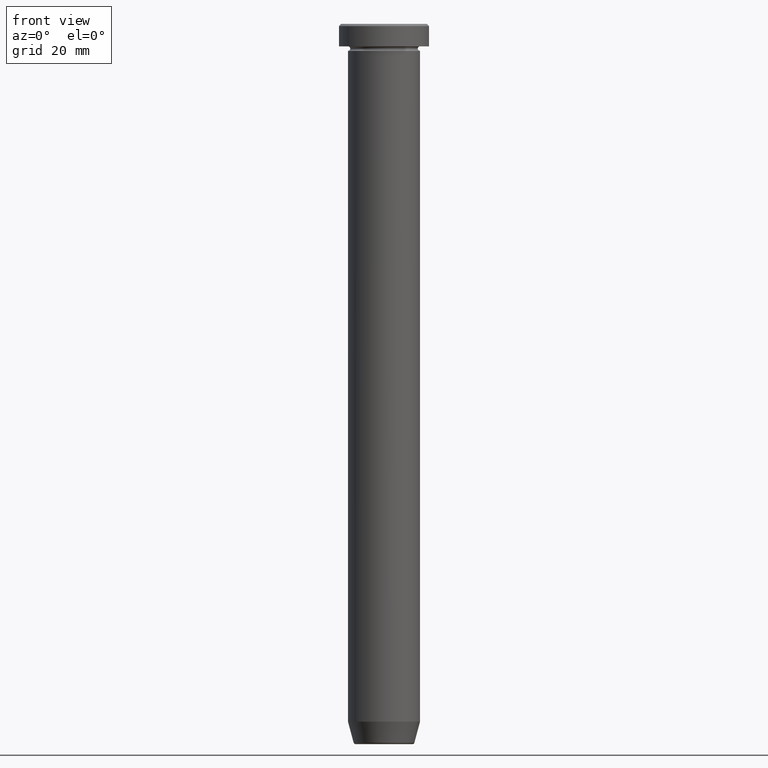
[diagram: clean part render]
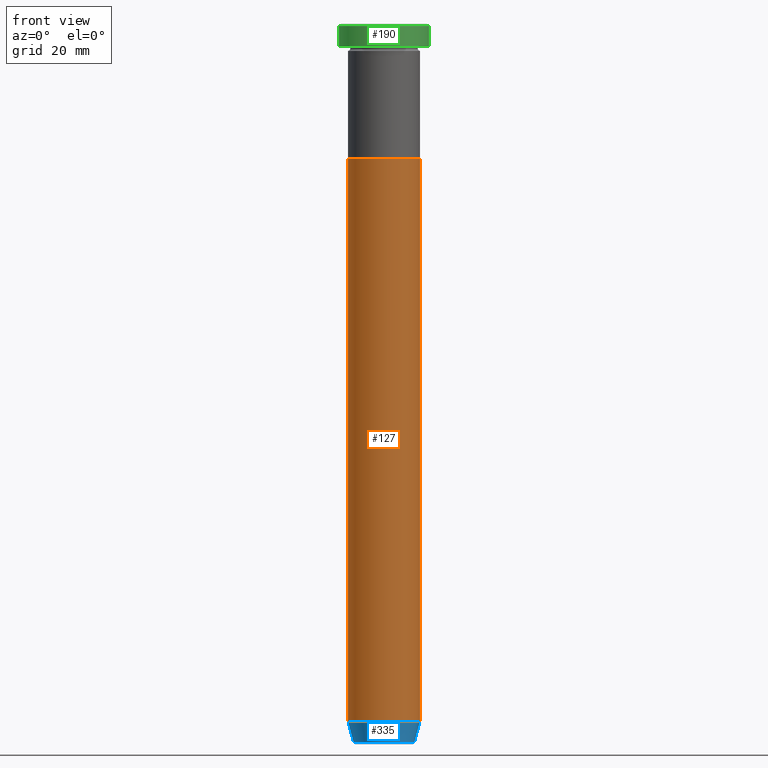
[diagram: same view with three faces highlighted in distinct colors, each labeled with its STEP entity id]
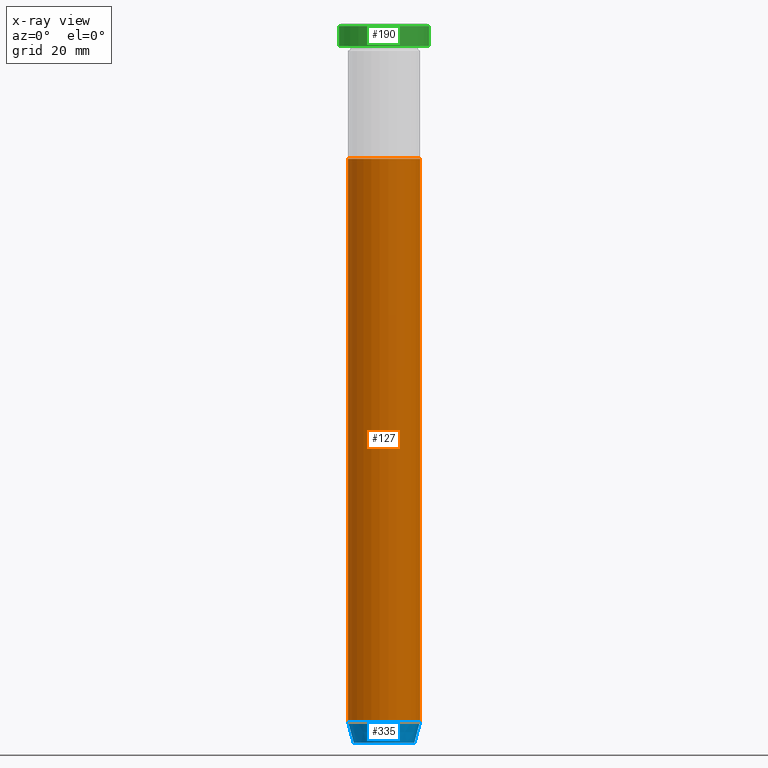
[diagram: x-ray of the same camera — body ghosted, the three highlighted faces saturated]
A machine part, front view with three faces highlighted in distinct colors.
The next image is the same camera in x-ray (body ghosted, the three faces saturated) — at least one of them is partly hidden behind the body in this view.
Their STEP definitions:

[orange] entity #127 — the highlighted cylindrical surface (edge-blend (fillet) strip) has radius 8 mm, axis along (-0, -0, 1).
#27 = CARTESIAN_POINT ( 'NONE',  ( 8.000000000000000000, 0.000000000000000000, 0.000000000000000000 ) ) ;
#77 = DIRECTION ( 'NONE',  ( 1.000000000000000000, 0.000000000000000000, 0.000000000000000000 ) ) ;
#83 = VECTOR ( 'NONE', #563, 1000.000000000000000 ) ;
#102 = CARTESIAN_POINT ( 'NONE',  ( 8.000000000000000000, 0.000000000000000000, -155.0000000000000000 ) ) ;
#116 = VERTEX_POINT ( 'NONE', #392 ) ;
#127 = ADVANCED_FACE ( 'NONE', ( #263 ), #453, .T. ) ;
#140 = DIRECTION ( 'NONE',  ( -0.000000000000000000, -0.000000000000000000, 1.000000000000000000 ) ) ;
#159 = DIRECTION ( 'NONE',  ( -0.000000000000000000, -0.000000000000000000, 1.000000000000000000 ) ) ;
#198 = EDGE_CURVE ( 'NONE', #341, #458, #204, .T. ) ;
#204 = LINE ( 'NONE', #533, #83 ) ;
#211 = ORIENTED_EDGE ( 'NONE', *, *, #475, .T. ) ;
#218 = CARTESIAN_POINT ( 'NONE',  ( 0.000000000000000000, 0.000000000000000000, 0.000000000000000000 ) ) ;
#226 = DIRECTION ( 'NONE',  ( -0.000000000000000000, -0.000000000000000000, 1.000000000000000000 ) ) ;
#238 = AXIS2_PLACEMENT_3D ( 'NONE', #218, #316, #77 ) ;
#258 = EDGE_CURVE ( 'NONE', #458, #116, #568, .T. ) ;
#263 = FACE_OUTER_BOUND ( 'NONE', #334, .T. ) ;
#306 = ORIENTED_EDGE ( 'NONE', *, *, #343, .T. ) ;
#307 = DIRECTION ( 'NONE',  ( 1.000000000000000000, 0.000000000000000000, 0.000000000000000000 ) ) ;
#316 = DIRECTION ( 'NONE',  ( -0.000000000000000000, -0.000000000000000000, 1.000000000000000000 ) ) ;
#317 = VERTEX_POINT ( 'NONE', #102 ) ;
#334 = EDGE_LOOP ( 'NONE', ( #355, #211, #306, #513 ) ) ;
#338 = CARTESIAN_POINT ( 'NONE',  ( 0.000000000000000000, 0.000000000000000000, -30.00000000000000000 ) ) ;
#341 = VERTEX_POINT ( 'NONE', #546 ) ;
#343 = EDGE_CURVE ( 'NONE', #317, #116, #549, .T. ) ;
#355 = ORIENTED_EDGE ( 'NONE', *, *, #198, .F. ) ;
#366 = CARTESIAN_POINT ( 'NONE',  ( 0.000000000000000000, 0.000000000000000000, -155.0000000000000000 ) ) ;
#372 = DIRECTION ( 'NONE',  ( 1.000000000000000000, 0.000000000000000000, 0.000000000000000000 ) ) ;
#392 = CARTESIAN_POINT ( 'NONE',  ( 8.000000000000000000, 0.000000000000000000, -30.00000000000000000 ) ) ;
#453 = CYLINDRICAL_SURFACE ( 'NONE', #238, 8.000000000000000000 ) ;
#458 = VERTEX_POINT ( 'NONE', #479 ) ;
#475 = EDGE_CURVE ( 'NONE', #341, #317, #500, .T. ) ;
#479 = CARTESIAN_POINT ( 'NONE',  ( -8.000000000000000000, 9.797174393178825657E-16, -30.00000000000000000 ) ) ;
#500 = CIRCLE ( 'NONE', #585, 8.000000000000000000 ) ;
#513 = ORIENTED_EDGE ( 'NONE', *, *, #258, .F. ) ;
#533 = CARTESIAN_POINT ( 'NONE',  ( -8.000000000000000000, 9.797174393178825657E-16, 0.000000000000000000 ) ) ;
#546 = CARTESIAN_POINT ( 'NONE',  ( -8.000000000000000000, 9.797174393178825657E-16, -155.0000000000000000 ) ) ;
#549 = LINE ( 'NONE', #27, #584 ) ;
#563 = DIRECTION ( 'NONE',  ( -0.000000000000000000, -0.000000000000000000, 1.000000000000000000 ) ) ;
#568 = CIRCLE ( 'NONE', #577, 8.000000000000000000 ) ;
#577 = AXIS2_PLACEMENT_3D ( 'NONE', #338, #159, #307 ) ;
#584 = VECTOR ( 'NONE', #226, 1000.000000000000000 ) ;
#585 = AXIS2_PLACEMENT_3D ( 'NONE', #366, #140, #372 ) ;

[blue] entity #335 — the highlighted conical surface has half-angle 15 deg.
#13 = DIRECTION ( 'NONE',  ( -1.000000000000000000, 0.000000000000000000, 0.000000000000000000 ) ) ;
#45 = DIRECTION ( 'NONE',  ( -0.2588190451025211836, 3.169619151431770488E-17, 0.9659258262890680902 ) ) ;
#63 = DIRECTION ( 'NONE',  ( -0.000000000000000000, -0.000000000000000000, 1.000000000000000000 ) ) ;
#65 = LINE ( 'NONE', #399, #369 ) ;
#67 = CONICAL_SURFACE ( 'NONE', #406, 6.660254037844382857, 0.2617993877991499074 ) ;
#102 = CARTESIAN_POINT ( 'NONE',  ( 8.000000000000000000, 0.000000000000000000, -155.0000000000000000 ) ) ;
#140 = DIRECTION ( 'NONE',  ( -0.000000000000000000, -0.000000000000000000, 1.000000000000000000 ) ) ;
#155 = ORIENTED_EDGE ( 'NONE', *, *, #536, .F. ) ;
#184 = CIRCLE ( 'NONE', #530, 6.759553456999436882 ) ;
#231 = EDGE_LOOP ( 'NONE', ( #155, #461, #246, #290 ) ) ;
#246 = ORIENTED_EDGE ( 'NONE', *, *, #415, .T. ) ;
#281 = CARTESIAN_POINT ( 'NONE',  ( 6.759553456999436882, 0.000000000000000000, -159.6294095225512422 ) ) ;
#290 = ORIENTED_EDGE ( 'NONE', *, *, #475, .F. ) ;
#304 = CARTESIAN_POINT ( 'NONE',  ( 0.000000000000000000, 0.000000000000000000, -159.6294095225512422 ) ) ;
#317 = VERTEX_POINT ( 'NONE', #102 ) ;
#335 = ADVANCED_FACE ( 'NONE', ( #386 ), #67, .T. ) ;
#341 = VERTEX_POINT ( 'NONE', #546 ) ;
#366 = CARTESIAN_POINT ( 'NONE',  ( 0.000000000000000000, 0.000000000000000000, -155.0000000000000000 ) ) ;
#369 = VECTOR ( 'NONE', #576, 1000.000000000000114 ) ;
#372 = DIRECTION ( 'NONE',  ( 1.000000000000000000, 0.000000000000000000, 0.000000000000000000 ) ) ;
#373 = VERTEX_POINT ( 'NONE', #424 ) ;
#385 = VERTEX_POINT ( 'NONE', #281 ) ;
#386 = FACE_OUTER_BOUND ( 'NONE', #231, .T. ) ;
#399 = CARTESIAN_POINT ( 'NONE',  ( 6.660254037844382857, 0.000000000000000000, -160.0000000000000000 ) ) ;
#406 = AXIS2_PLACEMENT_3D ( 'NONE', #566, #412, #409 ) ;
#409 = DIRECTION ( 'NONE',  ( 1.000000000000000000, 0.000000000000000000, 0.000000000000000000 ) ) ;
#412 = DIRECTION ( 'NONE',  ( -0.000000000000000000, -0.000000000000000000, 1.000000000000000000 ) ) ;
#415 = EDGE_CURVE ( 'NONE', #385, #317, #65, .T. ) ;
#424 = CARTESIAN_POINT ( 'NONE',  ( -6.759553456999436882, 9.037619948979306213E-16, -159.6294095225512422 ) ) ;
#461 = ORIENTED_EDGE ( 'NONE', *, *, #599, .T. ) ;
#471 = CARTESIAN_POINT ( 'NONE',  ( -6.660254037844382857, 8.156458788954358790E-16, -160.0000000000000000 ) ) ;
#475 = EDGE_CURVE ( 'NONE', #341, #317, #500, .T. ) ;
#500 = CIRCLE ( 'NONE', #585, 8.000000000000000000 ) ;
#530 = AXIS2_PLACEMENT_3D ( 'NONE', #304, #63, #13 ) ;
#536 = EDGE_CURVE ( 'NONE', #373, #341, #562, .T. ) ;
#544 = VECTOR ( 'NONE', #45, 1000.000000000000114 ) ;
#546 = CARTESIAN_POINT ( 'NONE',  ( -8.000000000000000000, 9.797174393178825657E-16, -155.0000000000000000 ) ) ;
#562 = LINE ( 'NONE', #471, #544 ) ;
#566 = CARTESIAN_POINT ( 'NONE',  ( 0.000000000000000000, 0.000000000000000000, -160.0000000000000000 ) ) ;
#576 = DIRECTION ( 'NONE',  ( 0.2588190451025211836, 0.000000000000000000, 0.9659258262890680902 ) ) ;
#585 = AXIS2_PLACEMENT_3D ( 'NONE', #366, #140, #372 ) ;
#599 = EDGE_CURVE ( 'NONE', #373, #385, #184, .T. ) ;

[green] entity #190 — the highlighted cylindrical surface (partial cylindrical patch) has radius 10 mm, axis along (-0, -0, 1).
#5 = VECTOR ( 'NONE', #362, 1000.000000000000000 ) ;
#7 = AXIS2_PLACEMENT_3D ( 'NONE', #38, #594, #557 ) ;
#16 = DIRECTION ( 'NONE',  ( -0.000000000000000000, -0.000000000000000000, 1.000000000000000000 ) ) ;
#21 = VERTEX_POINT ( 'NONE', #589 ) ;
#38 = CARTESIAN_POINT ( 'NONE',  ( 0.000000000000000000, 0.000000000000000000, -5.000000000000000000 ) ) ;
#51 = CARTESIAN_POINT ( 'NONE',  ( 0.000000000000000000, 0.000000000000000000, -0.4999999999999987232 ) ) ;
#108 = AXIS2_PLACEMENT_3D ( 'NONE', #535, #16, #301 ) ;
#134 = EDGE_CURVE ( 'NONE', #21, #138, #282, .T. ) ;
#138 = VERTEX_POINT ( 'NONE', #289 ) ;
#143 = CYLINDRICAL_SURFACE ( 'NONE', #108, 10.00000000000000000 ) ;
#145 = CARTESIAN_POINT ( 'NONE',  ( -10.00000000000000000, 1.224646799147353256E-15, 0.000000000000000000 ) ) ;
#183 = FACE_OUTER_BOUND ( 'NONE', #294, .T. ) ;
#186 = CARTESIAN_POINT ( 'NONE',  ( 10.00000000000000000, 0.000000000000000000, 0.000000000000000000 ) ) ;
#190 = ADVANCED_FACE ( 'NONE', ( #183 ), #143, .T. ) ;
#192 = DIRECTION ( 'NONE',  ( 1.000000000000000000, 0.000000000000000000, 0.000000000000000000 ) ) ;
#225 = CIRCLE ( 'NONE', #455, 10.00000000000000000 ) ;
#276 = CIRCLE ( 'NONE', #7, 10.00000000000000000 ) ;
#282 = LINE ( 'NONE', #186, #5 ) ;
#289 = CARTESIAN_POINT ( 'NONE',  ( 10.00000000000000000, 0.000000000000000000, -0.4999999999999987232 ) ) ;
#294 = EDGE_LOOP ( 'NONE', ( #391, #383, #342, #582 ) ) ;
#301 = DIRECTION ( 'NONE',  ( 1.000000000000000000, 0.000000000000000000, 0.000000000000000000 ) ) ;
#302 = VERTEX_POINT ( 'NONE', #446 ) ;
#330 = DIRECTION ( 'NONE',  ( -0.000000000000000000, -0.000000000000000000, 1.000000000000000000 ) ) ;
#342 = ORIENTED_EDGE ( 'NONE', *, *, #134, .T. ) ;
#362 = DIRECTION ( 'NONE',  ( -0.000000000000000000, -0.000000000000000000, 1.000000000000000000 ) ) ;
#383 = ORIENTED_EDGE ( 'NONE', *, *, #517, .T. ) ;
#391 = ORIENTED_EDGE ( 'NONE', *, *, #548, .F. ) ;
#419 = VECTOR ( 'NONE', #330, 1000.000000000000000 ) ;
#427 = CARTESIAN_POINT ( 'NONE',  ( -10.00000000000000000, 1.224646799147353256E-15, -0.4999999999999987232 ) ) ;
#446 = CARTESIAN_POINT ( 'NONE',  ( -10.00000000000000000, 1.224646799147353256E-15, -5.000000000000000000 ) ) ;
#455 = AXIS2_PLACEMENT_3D ( 'NONE', #51, #515, #192 ) ;
#480 = EDGE_CURVE ( 'NONE', #138, #534, #225, .T. ) ;
#515 = DIRECTION ( 'NONE',  ( 0.000000000000000000, 0.000000000000000000, -1.000000000000000000 ) ) ;
#517 = EDGE_CURVE ( 'NONE', #302, #21, #276, .T. ) ;
#534 = VERTEX_POINT ( 'NONE', #427 ) ;
#535 = CARTESIAN_POINT ( 'NONE',  ( 0.000000000000000000, 0.000000000000000000, 0.000000000000000000 ) ) ;
#548 = EDGE_CURVE ( 'NONE', #302, #534, #555, .T. ) ;
#555 = LINE ( 'NONE', #145, #419 ) ;
#557 = DIRECTION ( 'NONE',  ( 1.000000000000000000, 0.000000000000000000, 0.000000000000000000 ) ) ;
#582 = ORIENTED_EDGE ( 'NONE', *, *, #480, .T. ) ;
#589 = CARTESIAN_POINT ( 'NONE',  ( 10.00000000000000000, 0.000000000000000000, -5.000000000000000000 ) ) ;
#594 = DIRECTION ( 'NONE',  ( -0.000000000000000000, -0.000000000000000000, 1.000000000000000000 ) ) ;